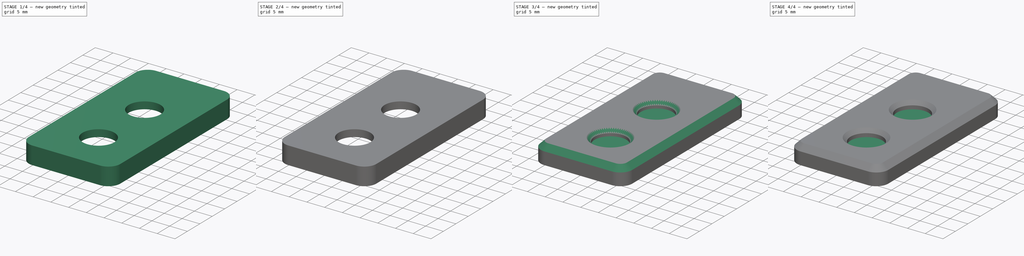
[diagram: build sequence overview — one tinted view per stage of 4, left to right]
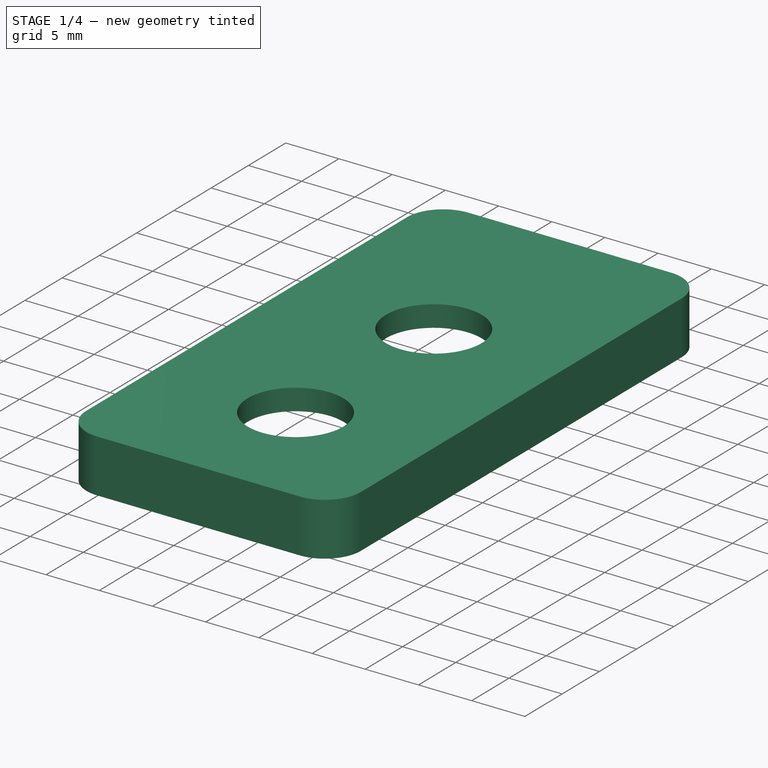
[diagram: stage 1 of 4 — iso view after this stage's code; geometry added in this stage tinted green]
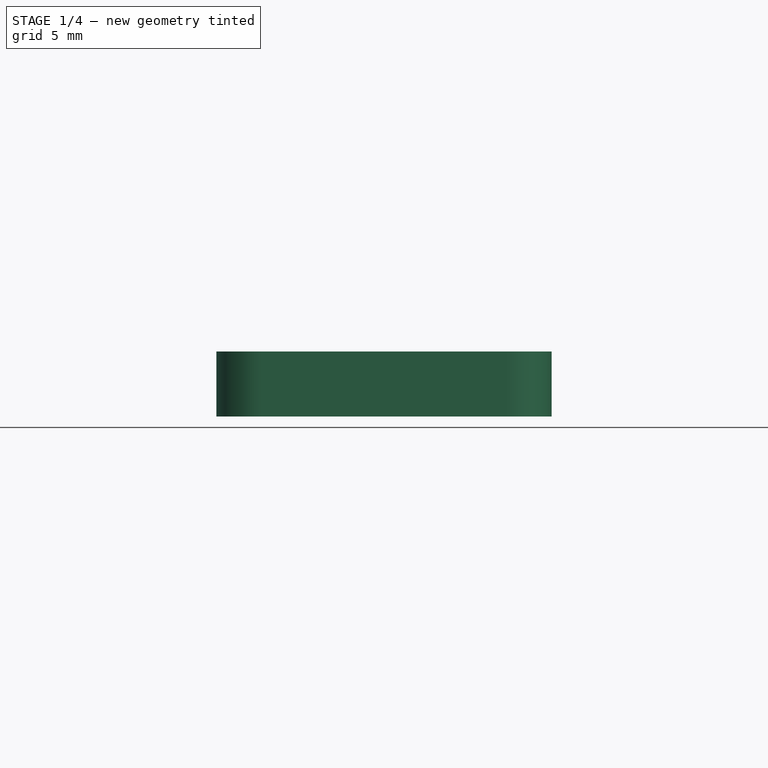
[diagram: stage 1 of 4 — front view after this stage's code; geometry added in this stage tinted green]
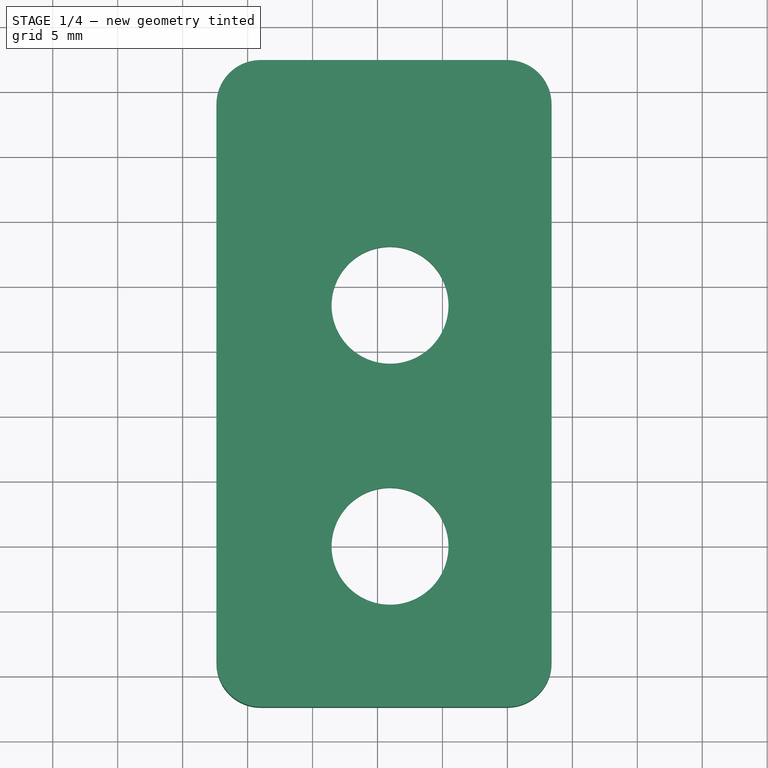
[diagram: stage 1 of 4 — top view after this stage's code; geometry added in this stage tinted green]
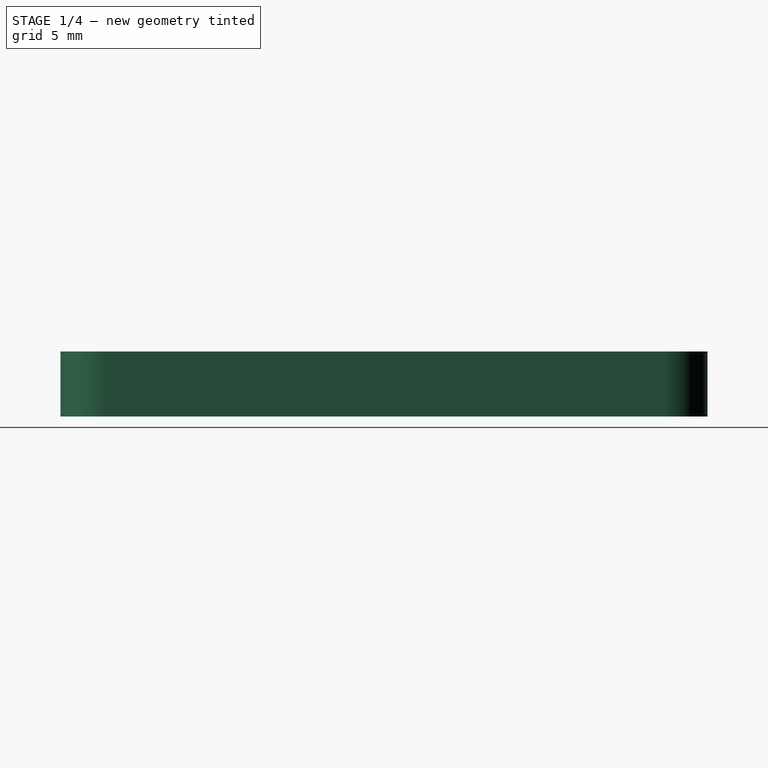
[diagram: stage 1 of 4 — right view after this stage's code; geometry added in this stage tinted green]
FCSTD DOCUMENT  (FreeCAD 1.0RUnknown)
Label: thumb-cluster
License: All rights reserved
LicenseURL: https://en.wikipedia.org/wiki/All_rights_reserved
objects: Part::Feature×14, Sketcher::SketchObject×10, App::Link×10, App::Part×6, PartDesign::Pocket×4, PartDesign::Pad×3, PartDesign::Chamfer×3, PartDesign::Thickness×2, PartDesign::Body×2, PartDesign::SubShapeBinder×2, PartDesign::CoordinateSystem×1, PartDesign::ShapeBinder×1
note: 76 computed .brp shape members not serialized (recipe doc carries the construction recipe); baked Part::Feature solids carry a one-line shape summary decoded from their .brp

FEATURE [PartDesign::Body] Body010  label="base"
  AllowCompound = false
  Group = -> [Sketch025,Pad,Thickness,ShapeBinder,Sketch026,Pocket010,Chamfer001]
  Origin = -> Origin022
  Placement = pos=(0,0,-3.6) rot=(0,0,1;0rad)
  Tip = -> Chamfer001
FEATURE [Sketcher::SketchObject] Sketch027  label="2.004"
  ArcFitTolerance = 1e-06
  FullyConstrained = false
  MakeInternals = false
  Placement = pos=(0,0,0) rot=(0,0,1;3.14159rad)
  sketch-geometry (8):
    g0: LineSegment StartX=-23.4 StartY=-44 StartZ=0 EndX=-23.4 EndY=-1 EndZ=0
    g1: ArcOfCircle CenterX=-20 CenterY=-0.999999 CenterZ=0 NormalX=0 NormalY=0 NormalZ=1 AngleXU=0 Radius=3.4 StartAngle=1.5708 EndAngle=3.14159
    g2: LineSegment StartX=-20 StartY=2.4 StartZ=0 EndX=-1 EndY=2.4 EndZ=0
    g3: ArcOfCircle CenterX=-0.999999 CenterY=-0.999999 CenterZ=0 NormalX=0 NormalY=0 NormalZ=1 AngleXU=0 Radius=3.4 StartAngle=6.28318 EndAngle=7.85398
    g4: LineSegment StartX=2.4 StartY=-1 StartZ=0 EndX=2.4 EndY=-44 EndZ=0
    g5: ArcOfCircle CenterX=-0.999999 CenterY=-44 CenterZ=0 NormalX=0 NormalY=0 NormalZ=1 AngleXU=0 Radius=3.4 StartAngle=4.71239 EndAngle=6.28319
    g6: LineSegment StartX=-0.999999 StartY=-47.4 StartZ=0 EndX=-20 EndY=-47.4 EndZ=0
    g7: ArcOfCircle CenterX=-20 CenterY=-44 CenterZ=0 NormalX=0 NormalY=0 NormalZ=1 AngleXU=0 Radius=3.4 StartAngle=3.14159 EndAngle=4.71239
  constraints (12):
    c: Vertical(g0)
    c: Coincident(g0,g1)
    c: Coincident(g1,g2)
    c: Horizontal(g2)
    c: Coincident(g2,g3)
    c: Coincident(g3,g4)
    c: Vertical(g4)
    c: Coincident(g4,g5)
    c: Coincident(g5,g6)
    c: Horizontal(g6)
    c: Coincident(g6,g7)
    c: Coincident(g7,g0)
FEATURE [PartDesign::Pad] Pad014
  Direction = (0,0,1)
  Length = 5
  Length2 = 10
  Placement = pos=(0,0,0) rot=(0,0,1;3.14159rad)
  Profile = -> Sketch027
  ReferenceAxis = -> Sketch027 [N_Axis]
  Refine = true
  Suppressed = false
  Type = 0
FEATURE [PartDesign::Thickness] Thickness001
  Base = -> Pad014 [Face9]
  BaseFeature = -> Pad014
  Intersection = false
  Join = 0
  Mode = 0
  Refine = true
  Reversed = true
  SupportTransform = false
  Suppressed = false
  Value = 2
FEATURE [PartDesign::SubShapeBinder] Binder001
  BindCopyOnChange = 0
  BindMode = 0
  ClaimChildren = false
  Context = -> Board_58ce [Part001.Body011.Binder001.]
  Fuse = false
  MakeFace = true
  OffsetFill = false
  OffsetIntersection = false
  OffsetJoinType = 0
  OffsetOpenResult = false
  PartialLoad = false
  Refine = true
  Relative = true
  Support = -> [Step_Models_58ce[Top_58ce.S6_SKRHADE_66ce9957abdd_ln_.Part__Feature.Edge656,Top_58ce.S6_SKRHADE_66ce9957abdd_ln_.Part__Feature.Edge660,Top_58ce.SKRHADE.Part__Feature.Edge656,Top_58ce.SKRHADE.Part__Feature.Edge660]]
  _Version = 2
FEATURE [Sketcher::SketchObject] Sketch029
  ArcFitTolerance = 1e-06
  AttachmentSupport = -> [Thickness001]
  ExternalGeometry = -> [Binder001]
  FullyConstrained = false
  MakeInternals = false
  MapMode = 5
  Placement = pos=(0,0,5) rot=(0,0,1;0rad)
  sketch-geometry (6):
    g0: LineSegment [constr] StartX=11.8395 StartY=28.5203 StartZ=0 EndX=10.4199 EndY=28.5203 EndZ=0
    g1: LineSegment [constr] StartX=10.9645 StartY=27.6453 StartZ=0 EndX=10.9645 EndY=28.5203 EndZ=0
    g2: LineSegment [constr] StartX=11.8395 StartY=9.96447 StartZ=0 EndX=10.2544 EndY=9.96447 EndZ=0
    g3: LineSegment [constr] StartX=10.9645 StartY=9.08947 StartZ=0 EndX=10.9645 EndY=9.96447 EndZ=0
    g4: Circle CenterX=10.9645 CenterY=9.96447 CenterZ=0 NormalX=0 NormalY=0 NormalZ=1 AngleXU=0 Radius=4.5
    g5: Circle CenterX=10.9645 CenterY=28.5203 CenterZ=0 NormalX=0 NormalY=0 NormalZ=1 AngleXU=0 Radius=4.5
  constraints (14):
    c: Symmetric(g-4,g-4,g0)
    c: Horizontal(g0)
    c: Symmetric(g-3,g-3,g1)
    c: PointOnObject(g1,g0)
    c: Vertical(g1)
    c: Symmetric(g-6,g-6,g2)
    c: Horizontal(g2)
    c: Symmetric(g-5,g-5,g3)
    c: PointOnObject(g3,g2)
    c: Vertical(g3)
    c: Diameter(g4) = 9
    c: Coincident(g4,g3)
    c: Diameter(g5) = 9
    c: Coincident(g5,g1)
FEATURE [PartDesign::Pocket] Pocket011
  BaseFeature = -> Thickness001
  Direction = (0,0,-1)
  Length = 5
  Length2 = 5
  Profile = -> Sketch029
  ReferenceAxis = -> Sketch029 [N_Axis]
  Refine = true
  Suppressed = false
  Type = 1
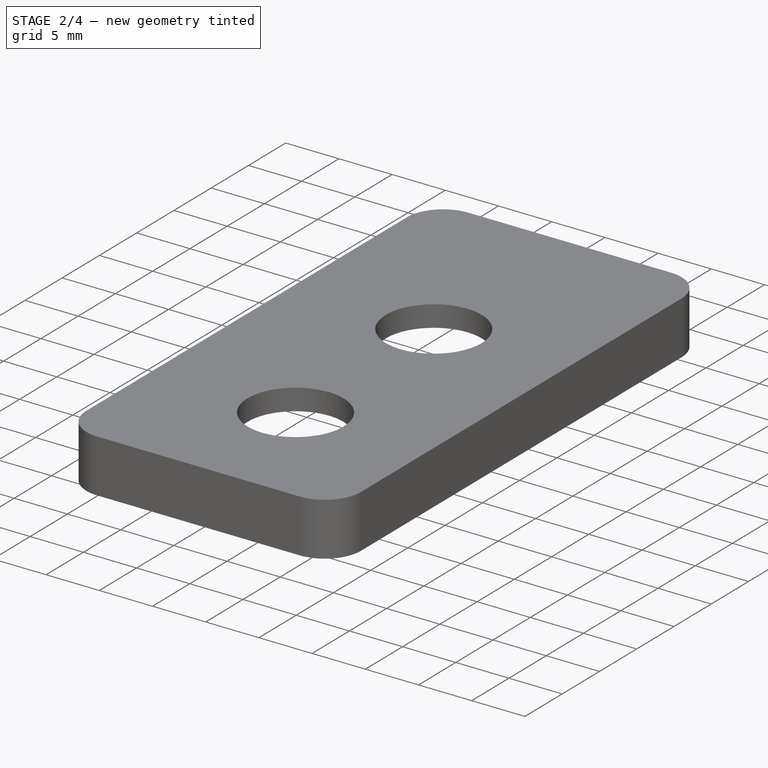
[diagram: stage 2 of 4 — iso view after this stage's code; geometry added in this stage tinted green]
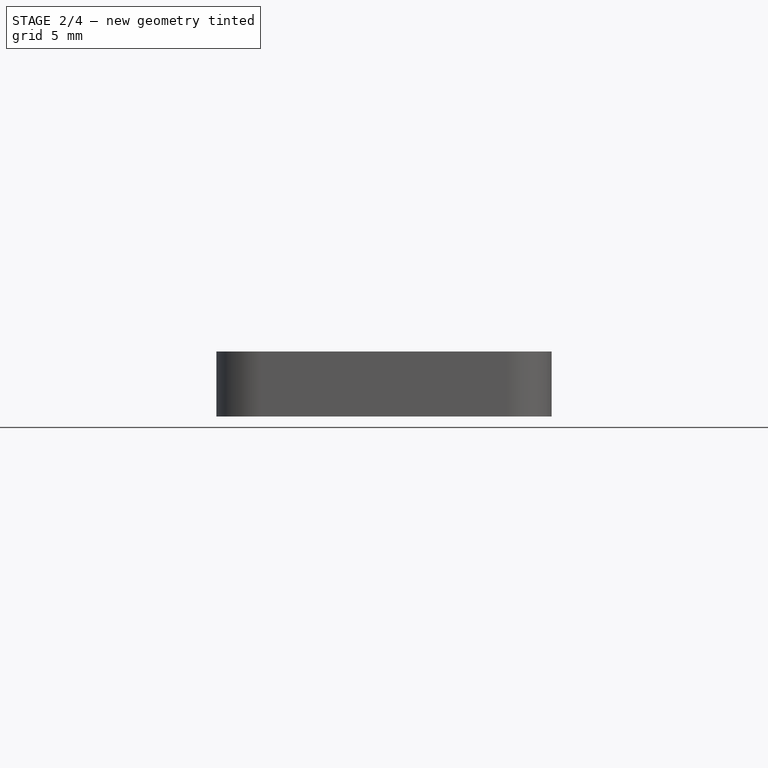
[diagram: stage 2 of 4 — front view after this stage's code; geometry added in this stage tinted green]
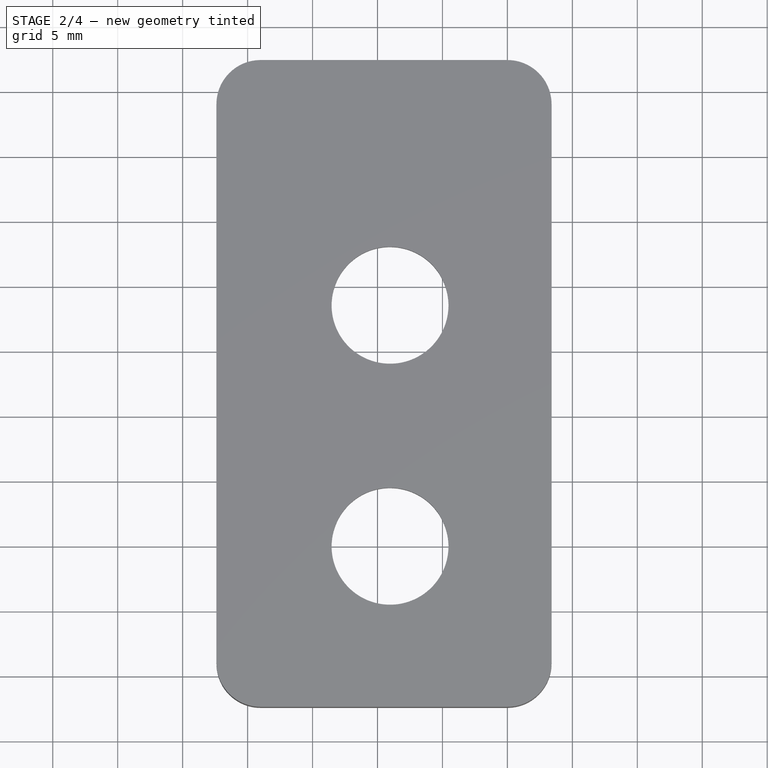
[diagram: stage 2 of 4 — top view after this stage's code; geometry added in this stage tinted green]
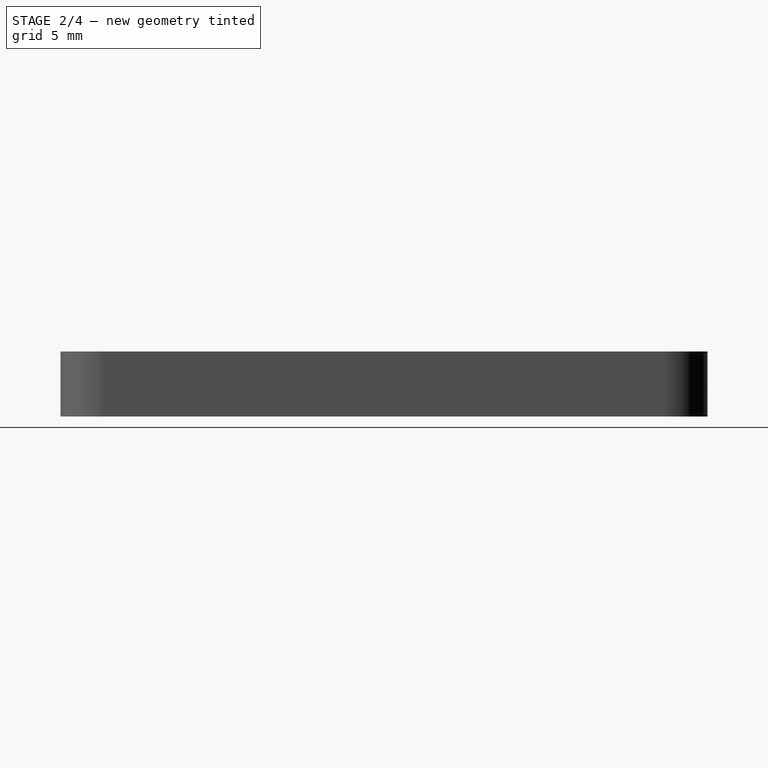
[diagram: stage 2 of 4 — right view after this stage's code; geometry added in this stage tinted green]
FEATURE [PartDesign::SubShapeBinder] Binder002
  BindCopyOnChange = 0
  BindMode = 0
  ClaimChildren = false
  Context = -> Board_58ce [Part001.Body011.Binder002.]
  Fuse = false
  MakeFace = true
  OffsetFill = false
  OffsetIntersection = false
  OffsetJoinType = 0
  OffsetOpenResult = false
  PartialLoad = false
  Refine = true
  Relative = true
  Support = -> [Board_Geoms_58ce[Pcb_58ce.Edge35,Pcb_58ce.Edge101,Pcb_58ce.Edge134,Pcb_58ce.Edge71]]
  _Version = 2
FEATURE [Sketcher::SketchObject] Sketch030
  ArcFitTolerance = 1e-06
  AttachmentSupport = -> [Pocket011]
  ExternalGeometry = -> [Binder002]
  FullyConstrained = true
  MakeInternals = false
  MapMode = 5
  Placement = pos=(0,0,0) rot=(1,0,0;3.14159rad)
  sketch-geometry (4):
    g0: Circle CenterX=3 CenterY=-3 CenterZ=0 NormalX=0 NormalY=0 NormalZ=1 AngleXU=0 Radius=3
    g1: Circle CenterX=18 CenterY=-3 CenterZ=0 NormalX=0 NormalY=0 NormalZ=1 AngleXU=0 Radius=3
    g2: Circle CenterX=18 CenterY=-42 CenterZ=0 NormalX=0 NormalY=0 NormalZ=1 AngleXU=0 Radius=3
    g3: Circle CenterX=3 CenterY=-42 CenterZ=0 NormalX=0 NormalY=0 NormalZ=1 AngleXU=0 Radius=3
  constraints (8):
    c: Diameter(g0) = 6
    c: Coincident(g0,g-3)
    c: Diameter(g1) = 6
    c: Coincident(g1,g-4)
    c: Diameter(g2) = 6
    c: Coincident(g2,g-5)
    c: Diameter(g3) = 6
    c: Coincident(g3,g-6)
FEATURE [PartDesign::Pad] Pad015
  BaseFeature = -> Pocket011
  Direction = (0,0,-1)
  Length = 10
  Length2 = 10
  Profile = -> Sketch030
  ReferenceAxis = -> Sketch030 [N_Axis]
  Refine = true
  Suppressed = false
  Type = 3
  UpToFace = -> Pocket011 [Face21]
FEATURE [Sketcher::SketchObject] Sketch031
  ArcFitTolerance = 1e-06
  AttachmentSupport = -> [Pad015]
  ExternalGeometry = -> [Pad015]
  FullyConstrained = true
  MakeInternals = false
  MapMode = 5
  Placement = pos=(0,0,0) rot=(1,0,0;3.14159rad)
  sketch-geometry (4):
    g0: Circle CenterX=3 CenterY=-3 CenterZ=0 NormalX=0 NormalY=0 NormalZ=1 AngleXU=0 Radius=1.65
    g1: Circle CenterX=18 CenterY=-3 CenterZ=0 NormalX=0 NormalY=0 NormalZ=1 AngleXU=0 Radius=1.65
    g2: Circle CenterX=18 CenterY=-42 CenterZ=0 NormalX=0 NormalY=0 NormalZ=1 AngleXU=0 Radius=1.65
    g3: Circle CenterX=3 CenterY=-42 CenterZ=0 NormalX=0 NormalY=0 NormalZ=1 AngleXU=0 Radius=1.65
  constraints (8):
    c: Diameter(g0) = 3.3
    c: Coincident(g0,g-3)
    c: Diameter(g1) = 3.3
    c: Coincident(g1,g-4)
    c: Diameter(g2) = 3.3
    c: Coincident(g2,g-5)
    c: Diameter(g3) = 3.3
    c: Coincident(g3,g-6)
FEATURE [PartDesign::Pocket] Pocket012
  BaseFeature = -> Pad015
  Direction = (0,0,1)
  Length = 3.3
  Length2 = 5
  Profile = -> Sketch031
  ReferenceAxis = -> Sketch031 [N_Axis]
  Refine = true
  Suppressed = false
  Type = 0
FEATURE [Sketcher::SketchObject] Sketch032
  ArcFitTolerance = 1e-06
  FullyConstrained = false
  MakeInternals = false
  Placement = pos=(0,0,0) rot=(0,0,1;3.14159rad)
  sketch-geometry (8):
    g0: LineSegment StartX=-23.4 StartY=-44 StartZ=0 EndX=-23.4 EndY=-0.999999 EndZ=0
    g1: ArcOfCircle CenterX=-20 CenterY=-0.999999 CenterZ=0 NormalX=0 NormalY=0 NormalZ=1 AngleXU=-3.14159 Radius=3.4 StartAngle=4.71239 EndAngle=6.28318
    g2: LineSegment StartX=-20 StartY=2.4 StartZ=0 EndX=-0.999999 EndY=2.4 EndZ=0
    g3: ArcOfCircle CenterX=-0.999999 CenterY=-0.999999 CenterZ=0 NormalX=0 NormalY=0 NormalZ=1 AngleXU=1.5708 Radius=3.4 StartAngle=4.71239 EndAngle=6.28318
    g4: LineSegment StartX=2.4 StartY=-0.999999 StartZ=0 EndX=2.4 EndY=-44 EndZ=0
    g5: ArcOfCircle CenterX=-0.999999 CenterY=-44 CenterZ=0 NormalX=0 NormalY=0 NormalZ=1 AngleXU=7.47076e-07 Radius=3.4 StartAngle=4.71239 EndAngle=6.28318
    g6: LineSegment StartX=-0.999999 StartY=-47.4 StartZ=0 EndX=-20 EndY=-47.4 EndZ=0
    g7: ArcOfCircle CenterX=-20 CenterY=-44 CenterZ=0 NormalX=0 NormalY=0 NormalZ=1 AngleXU=-1.5708 Radius=3.4 StartAngle=4.71239 EndAngle=6.28318
  constraints (12):
    c: Vertical(g0)
    c: Coincident(g0,g1)
    c: Coincident(g1,g2)
    c: Horizontal(g2)
    c: Coincident(g2,g3)
    c: Coincident(g3,g4)
    c: Vertical(g4)
    c: Coincident(g4,g5)
    c: Coincident(g5,g6)
    c: Horizontal(g6)
    c: Coincident(g6,g7)
    c: Coincident(g7,g0)
FEATURE [Sketcher::SketchObject] Sketch033
  ArcFitTolerance = 1e-06
  AttachmentSupport = -> [Pocket012]
  ExternalGeometry = -> [Pocket012]
  FullyConstrained = false
  MakeInternals = false
  MapMode = 5
  Placement = pos=(0,47.4,0) rot=(0,0.707107,0.707107;3.14159rad)
  sketch-geometry (8):
    g0: LineSegment StartX=-14.6619 StartY=0 StartZ=0 EndX=-7.26206 EndY=0 EndZ=0
    g1: LineSegment StartX=-7.26206 StartY=0 StartZ=0 EndX=-7.26206 EndY=1.78706 EndZ=0
    g2: LineSegment StartX=-7.55642 StartY=2.08141 StartZ=0 EndX=-14.3676 EndY=2.08141 EndZ=0
    g3: LineSegment StartX=-14.6619 StartY=1.78706 StartZ=0 EndX=-14.6619 EndY=0 EndZ=0
    g4: ArcOfCircle CenterX=-14.3676 CenterY=1.78706 CenterZ=0 NormalX=0 NormalY=0 NormalZ=1 AngleXU=0 Radius=0.294356 StartAngle=1.5708 EndAngle=3.14159
    g5: GeomPoint [constr] X=-14.6619 Y=2.08141 Z=0
    g6: ArcOfCircle CenterX=-7.55642 CenterY=1.78706 CenterZ=0 NormalX=0 NormalY=0 NormalZ=1 AngleXU=0 Radius=0.294356 StartAngle=0 EndAngle=1.5708
    g7: GeomPoint [constr] X=-7.26206 Y=2.08141 Z=0
  constraints (15):
    c: Coincident(g0,g1)
    c: Coincident(g3,g0)
    c: Horizontal(g0)
    c: Horizontal(g2)
    c: Vertical(g1)
    c: Vertical(g3)
    c: PointOnObject(g0,g-3)
    c: PointOnObject(g5,g2)
    c: PointOnObject(g5,g3)
    c: Tangent(g2,g4) = -1.5708
    c: Tangent(g3,g4) = -1.5708
    c: PointOnObject(g7,g1)
    c: PointOnObject(g7,g2)
    c: Tangent(g1,g6) = -1.5708
    c: Tangent(g2,g6) = -1.5708
FEATURE [PartDesign::Pocket] Pocket
  BaseFeature = -> Pocket012
  Direction = (0,-1,2e-16)
  Length = 2
  Length2 = 5
  Profile = -> Sketch033
  ReferenceAxis = -> Sketch033 [N_Axis]
  Refine = true
  Suppressed = false
  Type = 0
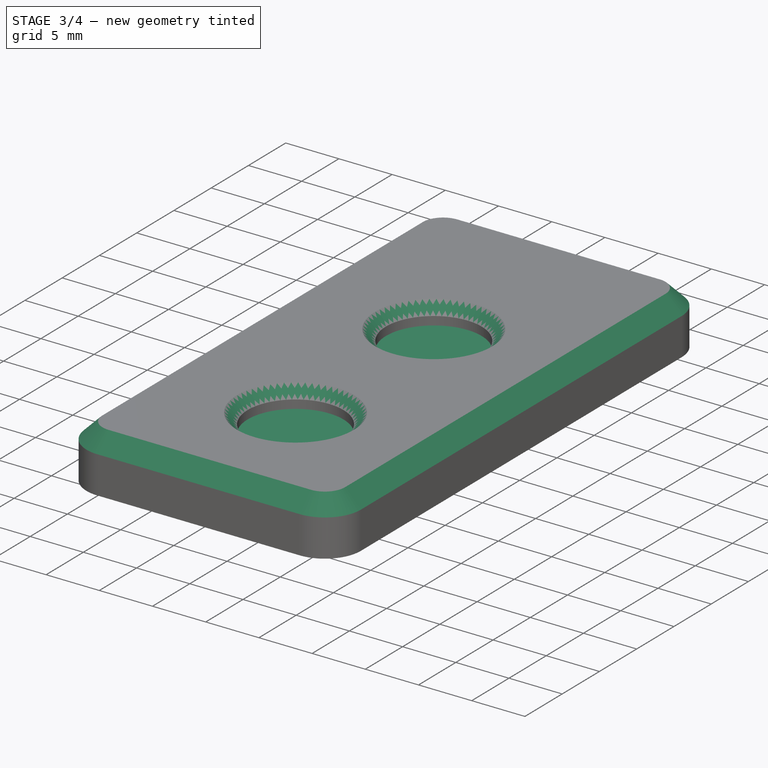
[diagram: stage 3 of 4 — iso view after this stage's code; geometry added in this stage tinted green]
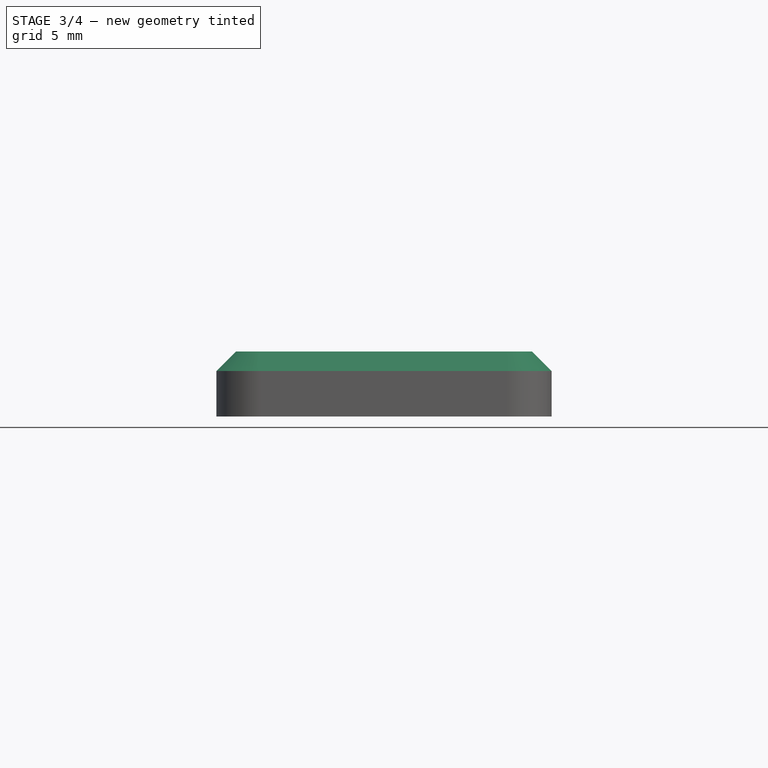
[diagram: stage 3 of 4 — front view after this stage's code; geometry added in this stage tinted green]
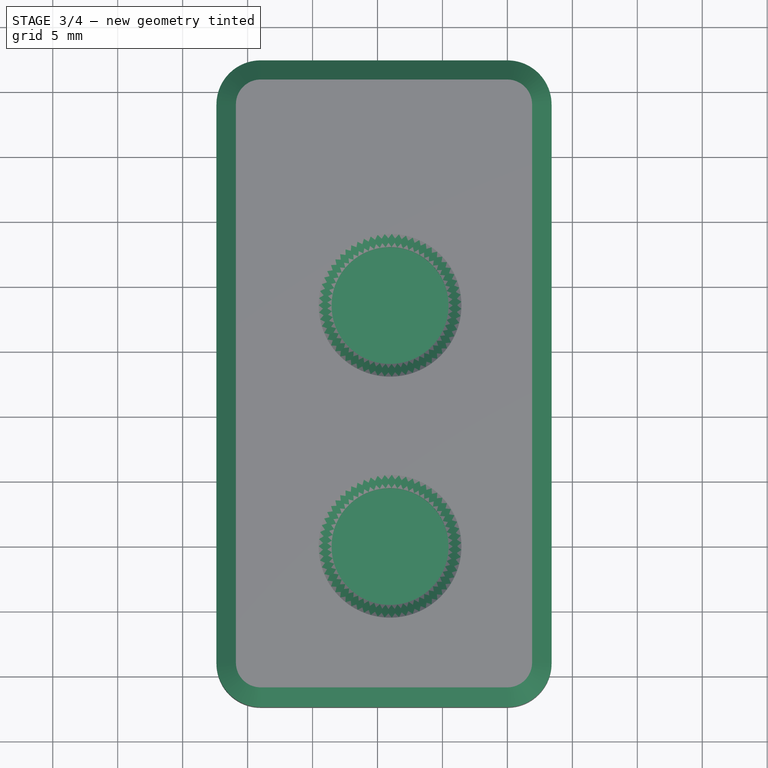
[diagram: stage 3 of 4 — top view after this stage's code; geometry added in this stage tinted green]
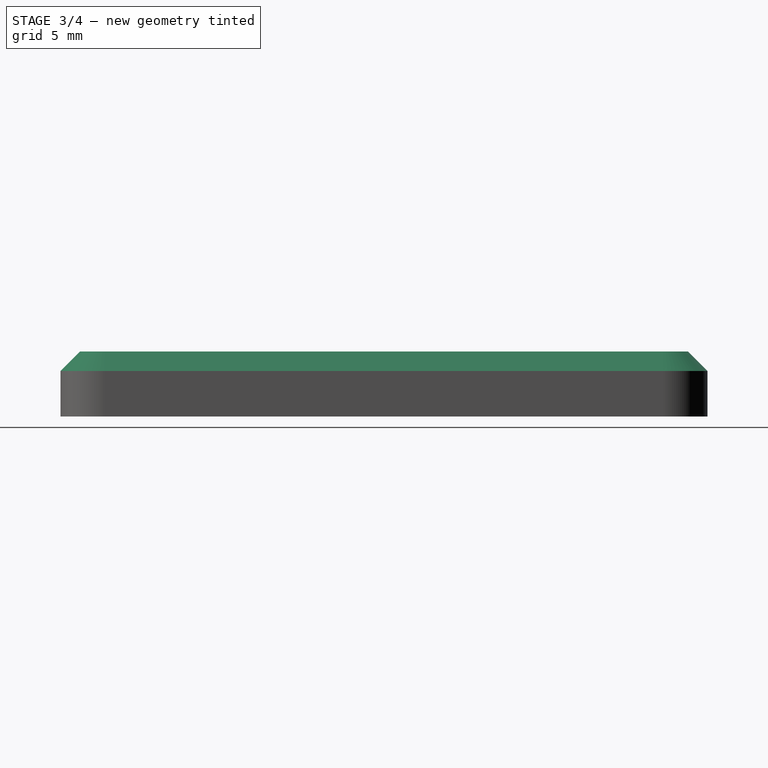
[diagram: stage 3 of 4 — right view after this stage's code; geometry added in this stage tinted green]
FEATURE [PartDesign::CoordinateSystem] Local_CS_58ce
  AttacherType = Attacher::AttachEngine3D
  MapMode = 2
FEATURE [Part::Feature] Pcb_58ce
  Placement = pos=(-19.5,69,0) rot=(0,0,1;0rad)
  shape: bbox 21 x 45 x 1.6 mm, 50 faces (baked)
FEATURE [Sketcher::SketchObject] PCB_Sketch_58ce
  ArcFitTolerance = 1e-06
  FullyConstrained = false
  MakeInternals = false
  sketch-geometry (8):
    g0: LineSegment StartX=21 StartY=44 StartZ=0 EndX=21 EndY=1 EndZ=0
    g1: LineSegment StartX=20 StartY=1e-16 StartZ=0 EndX=1 EndY=0 EndZ=0
    g2: LineSegment StartX=1 StartY=45 StartZ=0 EndX=20 EndY=45 EndZ=0
    g3: LineSegment StartX=1e-16 StartY=1 StartZ=0 EndX=3.3e-15 EndY=44 EndZ=0
    g4: ArcOfCircle CenterX=20 CenterY=44 CenterZ=0 NormalX=0 NormalY=0 NormalZ=-1 AngleXU=1.5708 Radius=0.999999 StartAngle=0 EndAngle=1.5708
    g5: ArcOfCircle CenterX=0.999999 CenterY=0.999999 CenterZ=0 NormalX=0 NormalY=0 NormalZ=-1 AngleXU=-1.5708 Radius=0.999999 StartAngle=0 EndAngle=1.5708
    g6: ArcOfCircle CenterX=20 CenterY=0.999999 CenterZ=0 NormalX=0 NormalY=0 NormalZ=-1 AngleXU=3.14159 Radius=0.999999 StartAngle=0 EndAngle=1.5708
    g7: ArcOfCircle CenterX=0.999999 CenterY=44 CenterZ=0 NormalX=0 NormalY=0 NormalZ=-1 AngleXU=-7.47076e-07 Radius=0.999999 StartAngle=0 EndAngle=1.5708
  constraints (8):
    c: Coincident(g3,g5)
    c: Coincident(g3,g7)
    c: Coincident(g1,g5)
    c: Coincident(g2,g7)
    c: Coincident(g1,g6)
    c: Coincident(g2,g4)
    c: Coincident(g0,g6)
    c: Coincident(g0,g4)
FEATURE [App::Part] Board_Geoms_58ce
  Group = -> [Pcb_58ce,PCB_Sketch_58ce]
  Origin = -> Origin
FEATURE [Part::Feature] Shape  label="D24_D_SOD_123_0f779e6ff9e7"
  Placement = pos=(3.66673,13.8333,0) rot=(0,0,-1;0.785398rad)
  shape: bbox 3.147 x 3.147 x 1.25 mm, 67 faces (baked)
FEATURE [Part::Feature] Shape001  label="J4_SOLID_42e36dcc9d63"
  Placement = pos=(10.9645,42.4,0) rot=(0,0.707107,0.707107;3.14159rad)
  shape: bbox 5.501 x 4.001 x 0.9009 mm, 979 faces (baked)
FEATURE [App::Link] D24_D_SOD_123_0f779e6ff9e7_ln_  label="D23_D_SOD_123_3fd67df90355"
  LinkPlacement = pos=(5.66673,15.8333,0) rot=(0,0,-1;0.785398rad)
  LinkedObject = -> Shape
  Placement = pos=(5.66673,15.8333,0) rot=(0,0,-1;0.785398rad)
FEATURE [App::Link] D24_D_SOD_123_0f779e6ff9e7_ln_001  label="D30_D_SOD_123_61e72e2af53f"
  LinkPlacement = pos=(19.75,16.55,0) rot=(0,0,-1;1.5708rad)
  LinkedObject = -> Shape
  Placement = pos=(19.75,16.55,0) rot=(0,0,-1;1.5708rad)
FEATURE [App::Link] D24_D_SOD_123_0f779e6ff9e7_ln_002  label="D27_D_SOD_123_7b2efe9b5669"
  LinkPlacement = pos=(17.6667,24.3333,0) rot=(0,0,1;2.35619rad)
  LinkedObject = -> Shape
  Placement = pos=(17.6667,24.3333,0) rot=(0,0,1;2.35619rad)
FEATURE [App::Link] D24_D_SOD_123_0f779e6ff9e7_ln_003  label="D22_D_SOD_123_057a97edfa83"
  LinkPlacement = pos=(7.66673,17.8333,0) rot=(0,0,-1;0.785398rad)
  LinkedObject = -> Shape
  Placement = pos=(7.66673,17.8333,0) rot=(0,0,-1;0.785398rad)
FEATURE [App::Link] D24_D_SOD_123_0f779e6ff9e7_ln_004  label="D29_D_SOD_123_cdf521000048"
  LinkPlacement = pos=(16.5,16.55,0) rot=(0,0,-1;1.5708rad)
  LinkedObject = -> Shape
  Placement = pos=(16.5,16.55,0) rot=(0,0,-1;1.5708rad)
FEATURE [App::Link] D24_D_SOD_123_0f779e6ff9e7_ln_005  label="D28_D_SOD_123_d5d7d507dfc1"
  LinkPlacement = pos=(15.6667,22.3333,0) rot=(0,0,1;2.35619rad)
  LinkedObject = -> Shape
  Placement = pos=(15.6667,22.3333,0) rot=(0,0,1;2.35619rad)
FEATURE [App::Link] D24_D_SOD_123_0f779e6ff9e7_ln_006  label="D20_D_SOD_123_675b5f77a9ad"
  LinkPlacement = pos=(5.16673,33.8333,0) rot=(0,0,-1;0.785398rad)
  LinkedObject = -> Shape
  Placement = pos=(5.16673,33.8333,0) rot=(0,0,-1;0.785398rad)
FEATURE [Part::Feature] Part__Feature  label="SKRHAD"
  shape: bbox 7.483 x 7.5 x 5.5 mm, 242 faces (baked)
FEATURE [Part::Feature] Part__Feature001  label="Pins"
  shape: bbox 1.15 x 0.8 x 0.1 mm, 6 faces (baked)
FEATURE [Part::Feature] Part__Feature002  label="Pins001"
  shape: bbox 1.15 x 0.8 x 0.1 mm, 6 faces (baked)
FEATURE [Part::Feature] Part__Feature003  label="Pins002"
  shape: bbox 1.15 x 0.8 x 0.1 mm, 6 faces (baked)
FEATURE [Part::Feature] Part__Feature004  label="Pins003"
  shape: bbox 1.15 x 0.8 x 0.1 mm, 6 faces (baked)
FEATURE [Part::Feature] Part__Feature005  label="Pins004"
  shape: bbox 1.15 x 0.8 x 0.1 mm, 6 faces (baked)
FEATURE [Part::Feature] Part__Feature006  label="Pins005"
  shape: bbox 1.15 x 0.8 x 0.1 mm, 6 faces (baked)
FEATURE [Part::Feature] Part__Feature007  label="Pins006"
  shape: bbox 1.64 x 1.44 x 0.1 mm, 6 faces (baked)
FEATURE [Part::Feature] Part__Feature008  label="Pins007"
  shape: bbox 1.64 x 1.44 x 0.1 mm, 6 faces (baked)
FEATURE [Part::Feature] Part__Feature009  label="Lugs"
  shape: bbox 0.55 x 0.55 x 1.8 mm, 3 faces (baked)
FEATURE [Part::Feature] Part__Feature010  label="Lugs001"
  shape: bbox 0.85 x 0.85 x 1.8 mm, 3 faces (baked)
FEATURE [App::Part] SKRHADE  label="S6_SKRHADE_66ce9957abdd"
  Group = -> [Part__Feature,Part__Feature001,Part__Feature002,Part__Feature003,Part__Feature004,Part__Feature005,Part__Feature006,Part__Feature007,Part__Feature008,Part__Feature009,Part__Feature010]
  Origin = -> Origin008
  Placement = pos=(10.9645,9.96447,0) rot=(0,0,-1;0.785398rad)
FEATURE [App::Link] D24_D_SOD_123_0f779e6ff9e7_ln_007  label="D21_D_SOD_123_014bcfdeeddd"
  LinkPlacement = pos=(3.16673,31.8333,0) rot=(0,0,-1;0.785398rad)
  LinkedObject = -> Shape
  Placement = pos=(3.16673,31.8333,0) rot=(0,0,-1;0.785398rad)
FEATURE [App::Link] D24_D_SOD_123_0f779e6ff9e7_ln_008  label="D19_D_SOD_123_2a26592c9c0c"
  LinkPlacement = pos=(7.16673,35.8333,0) rot=(0,0,-1;0.785398rad)
  LinkedObject = -> Shape
  Placement = pos=(7.16673,35.8333,0) rot=(0,0,-1;0.785398rad)
FEATURE [App::Link] S6_SKRHADE_66ce9957abdd_ln_  label="S5_SKRHADE_e4e283c67a98"
  LinkPlacement = pos=(10.9645,28.5203,0) rot=(0,0,-1;0.785398rad)
  LinkedObject = -> SKRHADE
  Placement = pos=(10.9645,28.5203,0) rot=(0,0,-1;0.785398rad)
FEATURE [App::Part] Top_58ce
  Group = -> [Shape,Shape001,D24_D_SOD_123_0f779e6ff9e7_ln_,D24_D_SOD_123_0f779e6ff9e7_ln_001,D24_D_SOD_123_0f779e6ff9e7_ln_002,D24_D_SOD_123_0f779e6ff9e7_ln_003,D24_D_SOD_123_0f779e6ff9e7_ln_004,D24_D_SOD_123_0f779e6ff9e7_ln_005,D24_D_SOD_123_0f779e6ff9e7_ln_006,SKRHADE,D24_D_SOD_123_0f779e6ff9e7_ln_007,D24_D_SOD_123_0f779e6ff9e7_ln_008,S6_SKRHADE_66ce9957abdd_ln_]
  Origin = -> Origin003
FEATURE [App::Part] Step_Models_58ce
  Group = -> [Top_58ce]
  Origin = -> Origin002
FEATURE [Sketcher::SketchObject] Sketch  label="2.2"
  ArcFitTolerance = 1e-06
  FullyConstrained = false
  MakeInternals = false
  Placement = pos=(0,0,0) rot=(0,0,1;3.14159rad)
  sketch-geometry (8):
    g0: LineSegment StartX=-23.2 StartY=-44 StartZ=0 EndX=-23.2 EndY=-0.999999 EndZ=0
    g1: ArcOfCircle CenterX=-20 CenterY=-0.999999 CenterZ=0 NormalX=0 NormalY=0 NormalZ=1 AngleXU=-3.14159 Radius=3.2 StartAngle=4.71239 EndAngle=6.28318
    g2: LineSegment StartX=-20 StartY=2.2 StartZ=0 EndX=-0.999999 EndY=2.2 EndZ=0
    g3: ArcOfCircle CenterX=-0.999999 CenterY=-0.999999 CenterZ=0 NormalX=0 NormalY=0 NormalZ=1 AngleXU=1.5708 Radius=3.2 StartAngle=4.71239 EndAngle=6.28318
    g4: LineSegment StartX=2.2 StartY=-0.999999 StartZ=0 EndX=2.2 EndY=-44 EndZ=0
    g5: ArcOfCircle CenterX=-0.999999 CenterY=-44 CenterZ=0 NormalX=0 NormalY=0 NormalZ=1 AngleXU=7.47076e-07 Radius=3.2 StartAngle=4.71239 EndAngle=6.28318
    g6: LineSegment StartX=-0.999999 StartY=-47.2 StartZ=0 EndX=-20 EndY=-47.2 EndZ=0
    g7: ArcOfCircle CenterX=-20 CenterY=-44 CenterZ=0 NormalX=0 NormalY=0 NormalZ=1 AngleXU=-1.5708 Radius=3.2 StartAngle=4.71239 EndAngle=6.28318
  constraints (12):
    c: Vertical(g0)
    c: Coincident(g0,g1)
    c: Coincident(g1,g2)
    c: Horizontal(g2)
    c: Coincident(g2,g3)
    c: Coincident(g3,g4)
    c: Vertical(g4)
    c: Coincident(g4,g5)
    c: Coincident(g5,g6)
    c: Horizontal(g6)
    c: Coincident(g6,g7)
    c: Coincident(g7,g0)
FEATURE [Sketcher::SketchObject] Sketch025  label="2.003"
  ArcFitTolerance = 1e-06
  FullyConstrained = false
  MakeInternals = false
  Placement = pos=(0,0,0) rot=(0,0,1;3.14159rad)
  sketch-geometry (8):
    g0: LineSegment StartX=-23.4 StartY=-44 StartZ=0 EndX=-23.4 EndY=-0.999999 EndZ=0
    g1: ArcOfCircle CenterX=-20 CenterY=-0.999999 CenterZ=0 NormalX=0 NormalY=0 NormalZ=1 AngleXU=0 Radius=3.4 StartAngle=1.5708 EndAngle=3.14159
    g2: LineSegment StartX=-20 StartY=2.4 StartZ=0 EndX=-0.999999 EndY=2.4 EndZ=0
    g3: ArcOfCircle CenterX=-0.999999 CenterY=-0.999999 CenterZ=0 NormalX=0 NormalY=0 NormalZ=1 AngleXU=0 Radius=3.4 StartAngle=6.28318 EndAngle=7.85398
    g4: LineSegment StartX=2.4 StartY=-1 StartZ=0 EndX=2.4 EndY=-44 EndZ=0
    g5: ArcOfCircle CenterX=-0.999999 CenterY=-44 CenterZ=0 NormalX=0 NormalY=0 NormalZ=1 AngleXU=0 Radius=3.4 StartAngle=4.71239 EndAngle=6.28318
    g6: LineSegment StartX=-0.999999 StartY=-47.4 StartZ=0 EndX=-20 EndY=-47.4 EndZ=0
    g7: ArcOfCircle CenterX=-20 CenterY=-44 CenterZ=0 NormalX=0 NormalY=0 NormalZ=1 AngleXU=0 Radius=3.4 StartAngle=3.14159 EndAngle=4.71239
  constraints (12):
    c: Vertical(g0)
    c: Coincident(g0,g1)
    c: Coincident(g1,g2)
    c: Horizontal(g2)
    c: Coincident(g2,g3)
    c: Coincident(g3,g4)
    c: Vertical(g4)
    c: Coincident(g4,g5)
    c: Coincident(g5,g6)
    c: Horizontal(g6)
    c: Coincident(g6,g7)
    c: Coincident(g7,g0)
FEATURE [PartDesign::Pad] Pad
  Direction = (0,0,1)
  Length = 3.2
  Length2 = 10
  Placement = pos=(0,0,0) rot=(0,0,1;3.14159rad)
  Profile = -> Sketch025
  ReferenceAxis = -> Sketch025 [N_Axis]
  Refine = true
  Suppressed = false
  Type = 0
FEATURE [PartDesign::Chamfer] Chamfer
  Angle = 45
  Base = -> Pocket [Edge34,Edge33]
  BaseFeature = -> Pocket
  ChamferType = 0
  FlipDirection = false
  Refine = true
  Size = 1
  Size2 = 1
  SupportTransform = false
  Suppressed = false
  UseAllEdges = false
FEATURE [PartDesign::Chamfer] Chamfer002
  Angle = 45
  Base = -> Chamfer [Edge5]
  BaseFeature = -> Chamfer
  ChamferType = 0
  FlipDirection = false
  Refine = true
  Size = 1.5
  Size2 = 1
  SupportTransform = false
  Suppressed = false
  UseAllEdges = false
FEATURE [PartDesign::Body] Body011  label="top"
  AllowCompound = false
  Group = -> [Sketch027,Pad014,Thickness001,Binder001,Sketch029,Pocket011,Binder002,Sketch030,Pad015,Sketch031,Pocket012,Sketch033,Pocket,Chamfer,Chamfer002]
  Origin = -> Origin023
  Tip = -> Chamfer002
FEATURE [App::Part] Part001  label="case"
  Group = -> [Body010,Body011]
  Origin = -> Origin021
FEATURE [App::Part] Board_58ce  label="thumb-cluster"
  Group = -> [Local_CS_58ce,Board_Geoms_58ce,Step_Models_58ce,Part001]
  Origin = -> Origin001
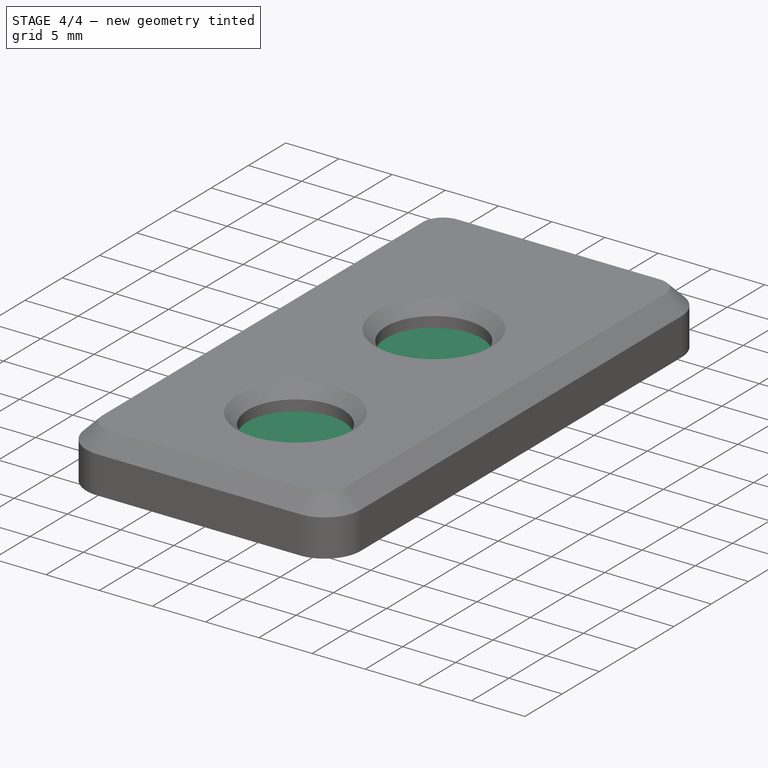
[diagram: stage 4 of 4 — iso view after this stage's code; geometry added in this stage tinted green]
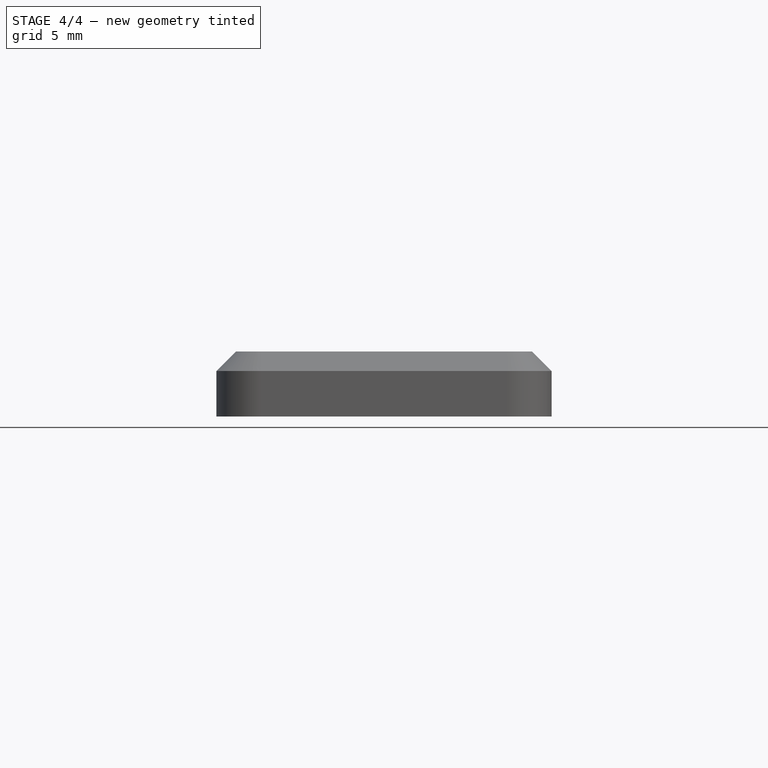
[diagram: stage 4 of 4 — front view after this stage's code; geometry added in this stage tinted green]
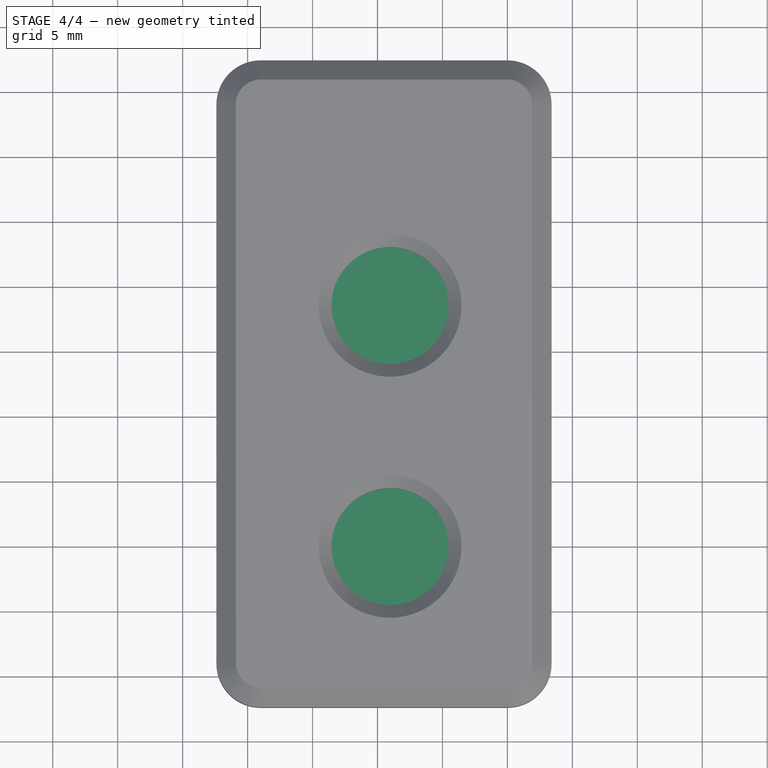
[diagram: stage 4 of 4 — top view after this stage's code; geometry added in this stage tinted green]
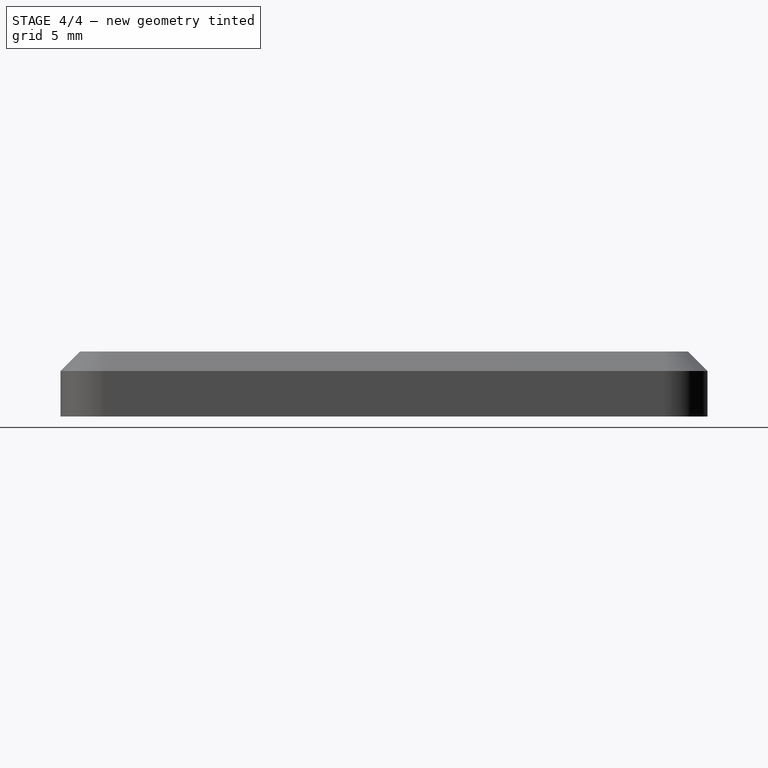
[diagram: stage 4 of 4 — right view after this stage's code; geometry added in this stage tinted green]
FEATURE [PartDesign::Thickness] Thickness
  Base = -> Pad [Face10]
  BaseFeature = -> Pad
  Intersection = false
  Join = 0
  Mode = 0
  Refine = true
  Reversed = true
  SupportTransform = false
  Suppressed = false
  Value = 2
FEATURE [PartDesign::ShapeBinder] ShapeBinder
  Support = -> [Pcb_58ce]
  TraceSupport = false
FEATURE [Sketcher::SketchObject] Sketch026
  ArcFitTolerance = 1e-06
  AttachmentSupport = -> [Thickness]
  ExternalGeometry = -> [ShapeBinder]
  FullyConstrained = true
  MakeInternals = false
  MapMode = 5
  Placement = pos=(0,0,0) rot=(1,0,0;3.14159rad)
  sketch-geometry (4):
    g0: Circle CenterX=3 CenterY=-3 CenterZ=0 NormalX=0 NormalY=0 NormalZ=1 AngleXU=0 Radius=1.25
    g1: Circle CenterX=18 CenterY=-3 CenterZ=0 NormalX=0 NormalY=0 NormalZ=1 AngleXU=0 Radius=1.25
    g2: Circle CenterX=18 CenterY=-42 CenterZ=0 NormalX=0 NormalY=0 NormalZ=1 AngleXU=0 Radius=1.25
    g3: Circle CenterX=3 CenterY=-42 CenterZ=0 NormalX=0 NormalY=0 NormalZ=1 AngleXU=0 Radius=1.25
  constraints (8):
    c: Coincident(g0,g-3)
    c: Coincident(g1,g-4)
    c: Coincident(g2,g-5)
    c: Diameter(g2) = 2.5
    c: Equal(g0,g1)
    c: Equal(g1,g2)
    c: Coincident(g3,g-6)
    c: Equal(g2,g3)
FEATURE [PartDesign::Pocket] Pocket010
  BaseFeature = -> Thickness
  Direction = (0,0,1)
  Length = 5
  Length2 = 5
  Profile = -> Sketch026
  ReferenceAxis = -> Sketch026 [N_Axis]
  Refine = true
  Suppressed = false
  Type = 1
FEATURE [PartDesign::Chamfer] Chamfer001
  Angle = 60
  Base = -> Pocket010 [Edge18,Edge19,Edge16,Edge17]
  BaseFeature = -> Pocket010
  ChamferType = 2
  FlipDirection = false
  Refine = true
  Size = 0.8
  Size2 = 1
  SupportTransform = false
  Suppressed = false
  UseAllEdges = false
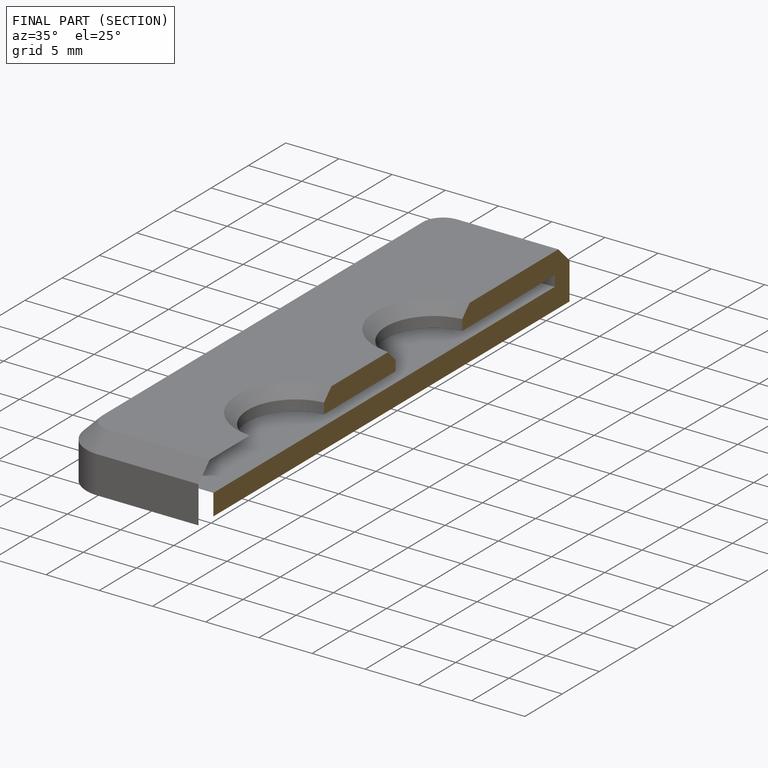
[diagram: finished part — half-section view (interior)]
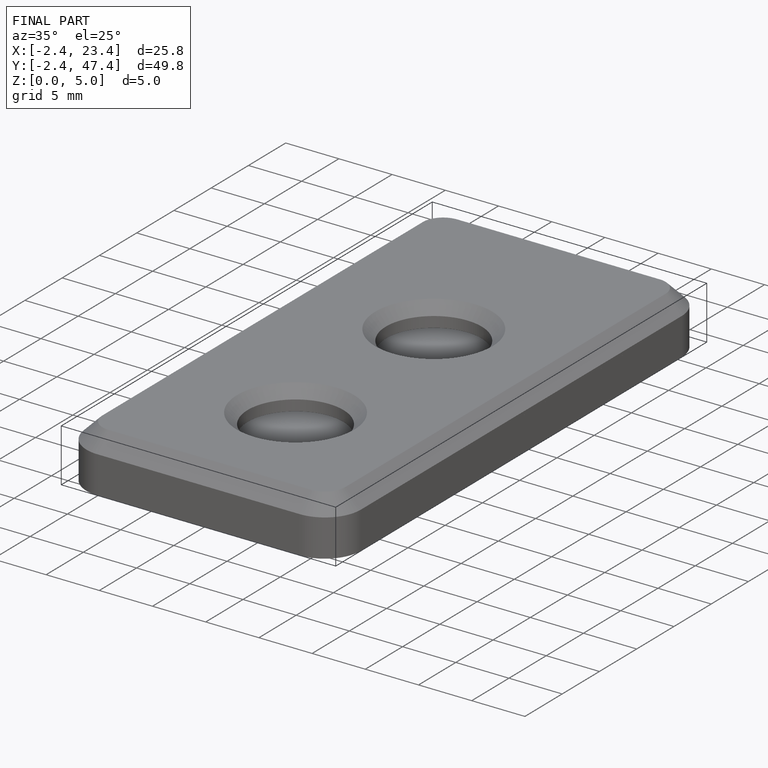
[diagram: finished part — iso view with bounding-box wireframe]
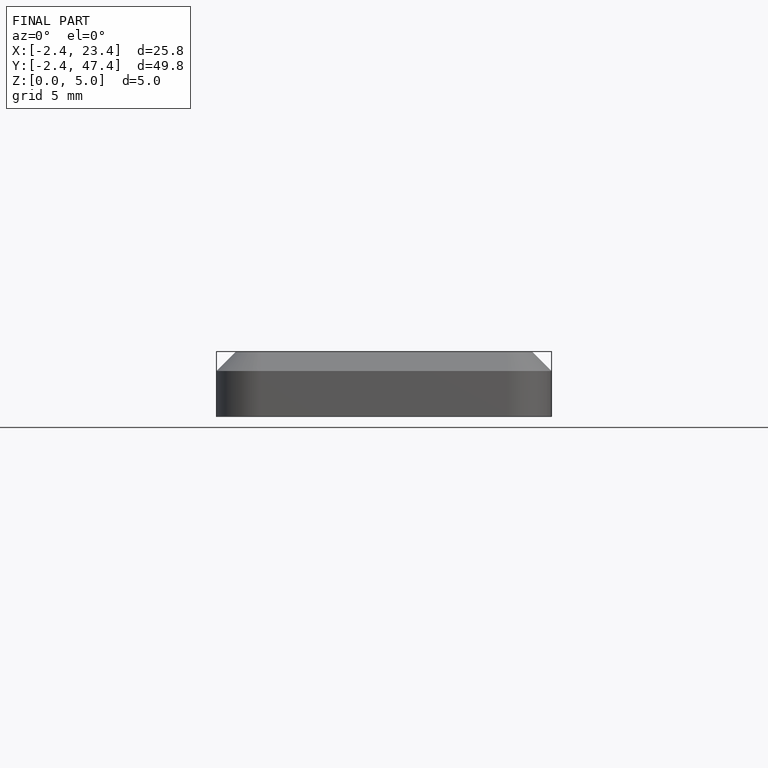
[diagram: finished part — front view with bounding-box wireframe]
